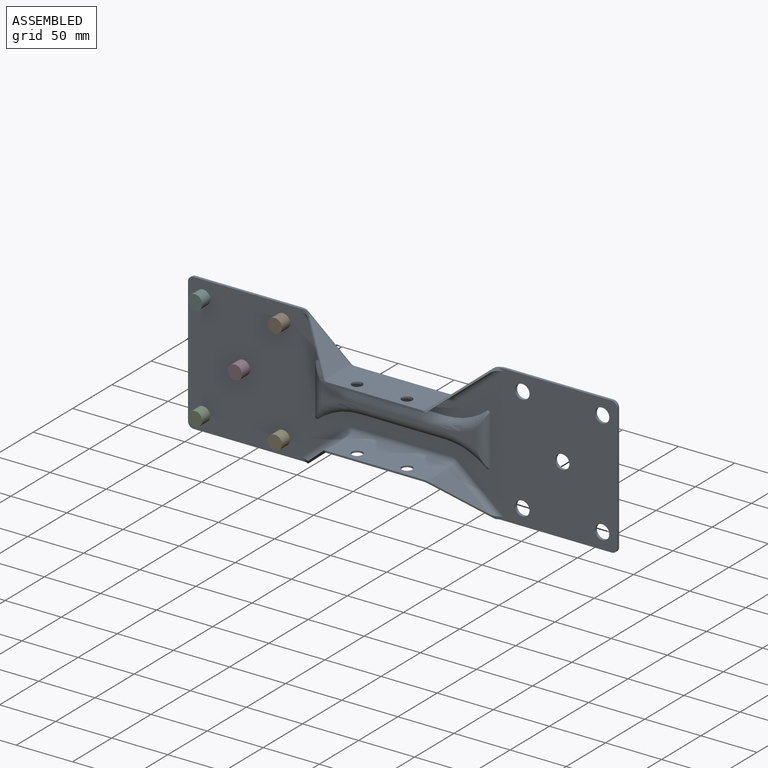
[diagram: assembled view]
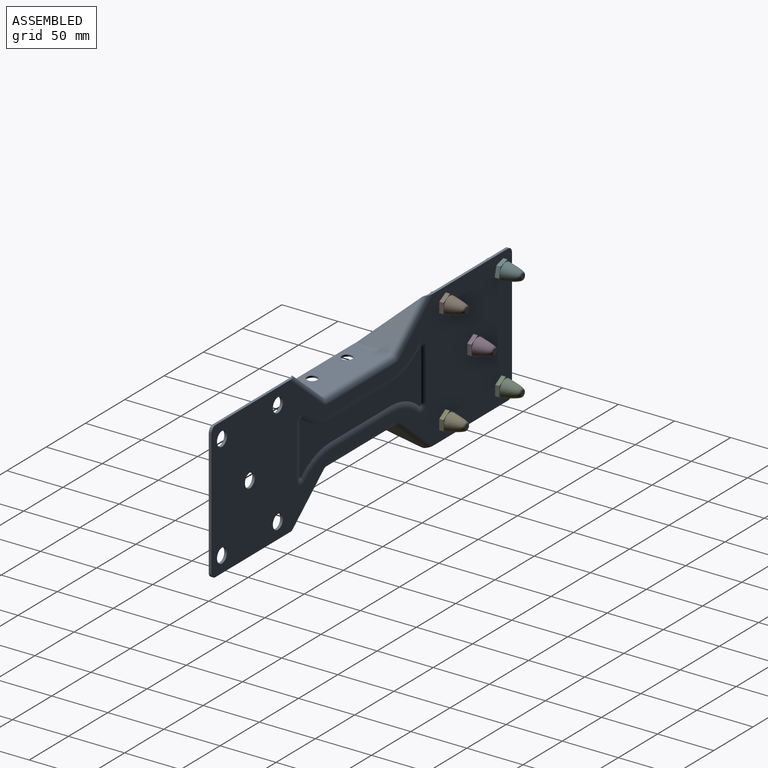
[diagram: assembled view, second angle]
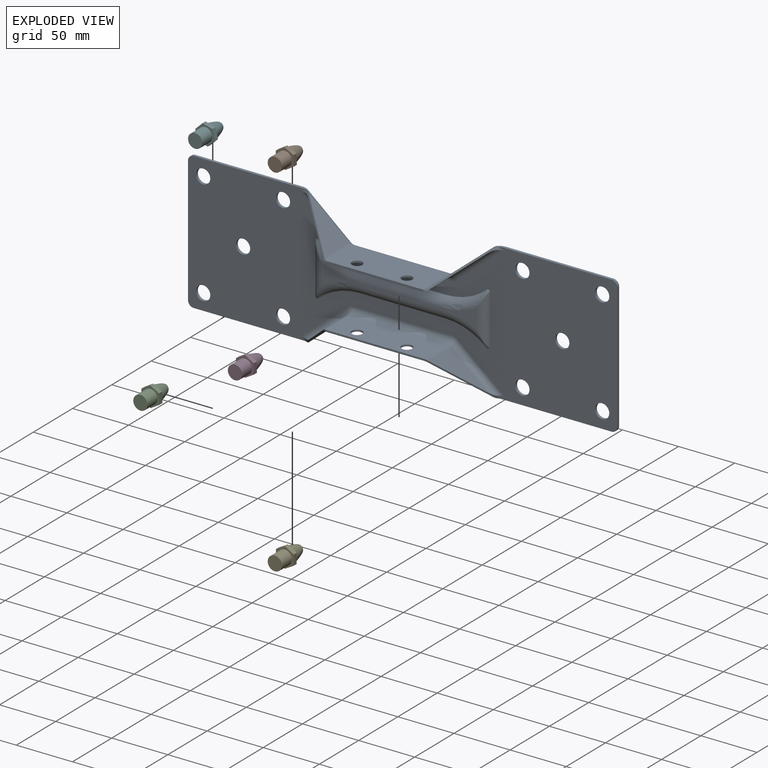
[diagram: exploded view]
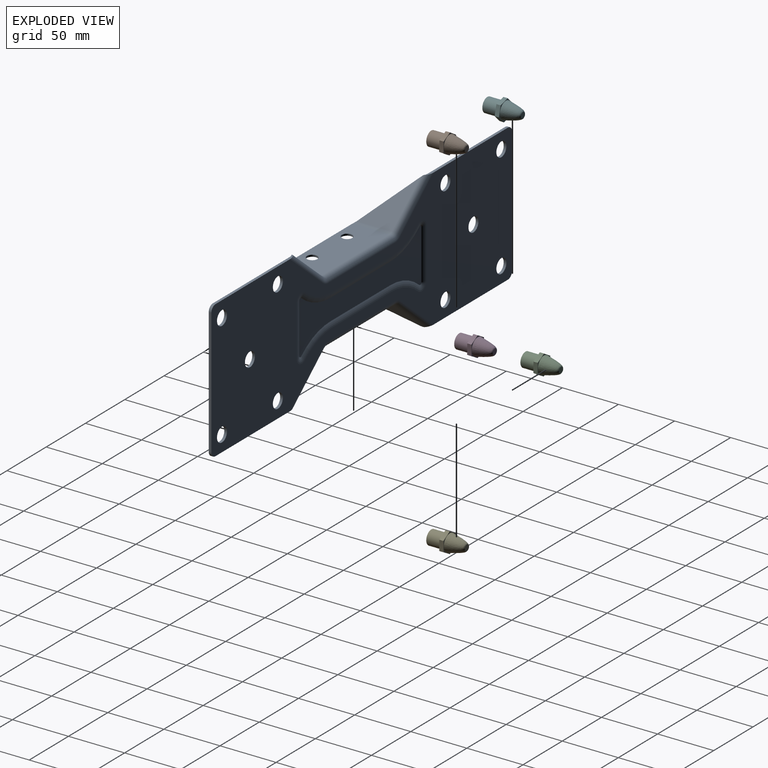
[diagram: exploded view, second angle]
ASSEMBLY  parts=6 mates=5
PART A: 106 faces, bbox 384x131.6x42.4 mm
  f0: plane 382.63x122.46mm, normal (0,0,-1), area 29301.2mm2, adj f2,f6,f11,f12,f14,f15,f40,f41
  f1: plane 382.63x122.46mm, normal (0,0,1), area 30788.4mm2, adj f2,f6,f11,f12,f14,f15,f28,f29
  f2: plane 103.77x4.76mm, normal (0,1,0), area 238.4mm2, adj f0,f1,f25,f52,f81,f95
  f3: plane 35.86x31.39mm, normal (-0.64,0.77,0), area 734.7mm2, adj f25,f52,f53
  f4: plane 85.2x33.02mm, normal (0,1,0), area 2674.1mm2, adj f5,f53,f55,f56,f84,f85,f90,f91
  f5: plane 86.02x1.59mm, normal (0,0,1), area 134.4mm2, adj f4,f16,f84,f85
  f6: plane 103.78x4.77mm, normal (0,-1,0), area 238.4mm2, adj f0,f1,f23,f77,f83,f93
  f7: plane 35.87x31.39mm, normal (0.64,-0.77,0), area 734.9mm2, adj f23,f77,f79
  f8: plane 85.2x33.02mm, normal (0,-1,0), area 2674.1mm2, adj f9,f73,f76,f79,f86,f87,f88,f89
  f9: plane 86.03x1.59mm, normal (0,0,1), area 134.5mm2, adj f8,f19,f86,f87
  f10: plane 35.87x31.39mm, normal (-0.64,-0.77,0), area 734.9mm2, adj f22,f73,f74
  f11: plane 103.78x4.77mm, normal (0,-1,0), area 238.4mm2, adj f0,f1,f22,f74,f80,f92
  f12: plane 112.3x2.38mm, normal (1,0,0), area 267.4mm2, adj f0,f1,f80,f81
  f13: plane 35.86x31.39mm, normal (0.64,0.77,0), area 734.7mm2, adj f24,f56,f58
  f14: plane 103.77x4.76mm, normal (0,1,0), area 238.4mm2, adj f0,f1,f24,f58,f82,f94
  f15: plane 112.3x2.38mm, normal (-1,0,0), area 267.4mm2, adj f0,f1,f82,f83
  f16: plane 86.36x30.63mm, normal (0,-1,0), area 2506.6mm2, adj f5,f66,f69,f70,f84,f85,f90,f91
  f17: plane 33.59x29.39mm, normal (0.64,-0.77,0), area 644.3mm2, adj f25,f66,f67
  f18: plane 33.59x29.39mm, normal (-0.64,-0.77,0), area 644.3mm2, adj f24,f69,f72
  f19: plane 86.37x30.63mm, normal (0,1,0), area 2507mm2, adj f9,f60,f62,f63,f86,f87,f88,f89
  f20: plane 33.59x29.39mm, normal (-0.64,0.77,0), area 644.3mm2, adj f23,f63,f65
  f21: plane 33.59x29.39mm, normal (0.64,0.77,0), area 644.3mm2, adj f22,f59,f60
  f22: plane 42.25x34.85mm, normal (0.43,-0.36,0.83), area 101.9mm2, adj f10,f11,f21,f59,f60,f73,f74,f87
  f23: plane 42.25x34.85mm, normal (-0.43,-0.36,0.83), area 101.9mm2, adj f6,f7,f20,f63,f65,f77,f79,f86
  f24: plane 42.25x34.85mm, normal (-0.43,0.36,0.83), area 101.6mm2, adj f13,f14,f18,f56,f58,f69,f72,f85
  f25: plane 42.25x34.85mm, normal (0.43,0.36,0.83), area 101.6mm2, adj f2,f3,f17,f52,f53,f66,f67,f84
  f26: plane 138.36x17.67mm, normal (0,0,1), area 573.5mm2, adj f29,f30,f32,f33,f34,f35,f37,f38
  f27: plane 155.58x47.63mm, normal (0,0,-1), area 3760.1mm2, adj f40,f41,f42,f43,f44,f45,f46,f47
  f28: bspline ~14.98x8.61mm, area 16.7mm2, adj f1,f29,f30
  f29: cylinder r=10.16mm len=44.45mm, axis (0,1,0), area 318.9mm2, adj f1,f26,f28,f31
  f30: torus R=64.96mm, axis (0,0,-1), area 374.7mm2, adj f1,f26,f28,f32
  f31: bspline ~14.98x8.61mm, area 20.4mm2, adj f1,f29,f33
  f32: cylinder r=10.16mm len=76.2mm, axis (1,0,0), area 782.5mm2, adj f1,f26,f30,f34
  f33: torus R=64.96mm, axis (0,0,-1), area 374.7mm2, adj f1,f26,f31,f35
  f34: torus R=64.96mm, axis (0,0,-1), area 374.7mm2, adj f1,f26,f32,f36
  f35: cylinder r=10.16mm len=76.2mm, axis (1,0,0), area 782.5mm2, adj f1,f26,f33,f37
  f36: bspline ~14.98x8.61mm, area 20.4mm2, adj f1,f34,f38
  f37: torus R=64.96mm, axis (0,0,-1), area 374.7mm2, adj f1,f26,f35,f39
  f38: cylinder r=10.16mm len=44.45mm, axis (0,-1,0), area 318.9mm2, adj f1,f26,f36,f39
  f39: bspline ~14.98x8.61mm, area 16.7mm2, adj f1,f37,f38
  f40: cylinder r=10.16mm len=76.2mm, axis (-1,0,0), area 391.2mm2, adj f0,f27,f41,f42
  f41: torus R=51.44mm, axis (0,0,-1), area 198.8mm2, adj f0,f27,f40,f43
  f42: torus R=51.44mm, axis (0,0,-1), area 198.8mm2, adj f0,f27,f40,f44
  f43: torus R=6.51mm, axis (0,0,1), area 46.9mm2, adj f0,f27,f41,f45
  f44: torus R=6.51mm, axis (0,0,1), area 46.9mm2, adj f0,f27,f42,f46
  f45: cylinder r=10.16mm len=44.45mm, axis (0,1,0), area 228.2mm2, adj f0,f27,f43,f47
  f46: cylinder r=10.16mm len=44.45mm, axis (0,-1,0), area 228.2mm2, adj f0,f27,f44,f48
  f47: torus R=6.51mm, axis (0,0,1), area 46.9mm2, adj f0,f27,f45,f49
  f48: torus R=6.51mm, axis (0,0,1), area 46.9mm2, adj f0,f27,f46,f50
  f49: torus R=51.44mm, axis (0,0,-1), area 198.8mm2, adj f0,f27,f47,f51
  f50: torus R=51.44mm, axis (0,0,-1), area 198.8mm2, adj f0,f27,f48,f51
  f51: cylinder r=10.16mm len=76.2mm, axis (-1,0,0), area 391.2mm2, adj f0,f27,f49,f50
  f52: cylinder r=5.08mm len=45.4mm, axis (-0.77,-0.64,0), area 409.2mm2, adj f0,f2,f3,f25,f54
  f53: cylinder r=5.08mm len=32.96mm, axis (0,0,1), area 114.6mm2, adj f3,f4,f25,f54,f84
  f54: torus R=10.16mm, axis (0,0,1), area 38.6mm2, adj f0,f52,f53,f55
  f55: cylinder r=5.08mm len=85.2mm, axis (-1,0,0), area 679.9mm2, adj f0,f4,f54,f57
  f56: cylinder r=5.08mm len=32.96mm, axis (0,0,-1), area 114.6mm2, adj f4,f13,f24,f57,f85
  f57: torus R=10.16mm, axis (0,0,1), area 38.6mm2, adj f0,f55,f56,f58
  f58: cylinder r=5.08mm len=45.4mm, axis (-0.77,0.64,0), area 409.2mm2, adj f0,f13,f14,f24,f57
  f59: cylinder r=5.08mm len=43.84mm, axis (-0.77,0.64,0), area 388.7mm2, adj f1,f21,f22,f61,f92
  f60: cylinder r=5.08mm len=30.63mm, axis (0,0,1), area 106.8mm2, adj f19,f21,f22,f61,f87
  f61: torus R=10.16mm, axis (0,0,1), area 38.6mm2, adj f1,f59,f60,f62
  f62: cylinder r=5.08mm len=86.37mm, axis (-1,0,0), area 689.2mm2, adj f1,f19,f61,f64
  f63: cylinder r=5.08mm len=30.63mm, axis (0,0,-1), area 106.8mm2, adj f19,f20,f23,f64,f86
  f64: torus R=10.16mm, axis (0,0,1), area 38.6mm2, adj f1,f62,f63,f65
  f65: cylinder r=5.08mm len=43.84mm, axis (-0.77,-0.64,0), area 388.7mm2, adj f1,f20,f23,f64,f93
  f66: cylinder r=5.08mm len=30.63mm, axis (0,0,1), area 106.8mm2, adj f16,f17,f25,f68,f84
  f67: cylinder r=5.08mm len=43.84mm, axis (0.77,0.64,0), area 388.7mm2, adj f1,f17,f25,f68,f95
  f68: torus R=10.16mm, axis (0,0,1), area 38.6mm2, adj f1,f66,f67,f70
  f69: cylinder r=5.08mm len=30.63mm, axis (0,0,-1), area 106.8mm2, adj f16,f18,f24,f71,f85
  f70: cylinder r=5.08mm len=86.36mm, axis (1,0,0), area 689.1mm2, adj f1,f16,f68,f71
  f71: torus R=10.16mm, axis (0,0,1), area 38.6mm2, adj f1,f69,f70,f72
  f72: cylinder r=5.08mm len=43.84mm, axis (0.77,-0.64,0), area 388.7mm2, adj f1,f18,f24,f71,f94
  f73: cylinder r=5.08mm len=32.97mm, axis (0,0,1), area 114.6mm2, adj f8,f10,f22,f75,f87
  f74: cylinder r=5.08mm len=45.4mm, axis (0.77,-0.64,0), area 409.2mm2, adj f0,f10,f11,f22,f75
  f75: torus R=10.16mm, axis (0,0,1), area 38.6mm2, adj f0,f73,f74,f76
  f76: cylinder r=5.08mm len=85.2mm, axis (1,0,0), area 679.9mm2, adj f0,f8,f75,f78
  f77: cylinder r=5.08mm len=45.4mm, axis (0.77,0.64,0), area 409.2mm2, adj f0,f6,f7,f23,f78
  f78: torus R=10.16mm, axis (0,0,1), area 38.6mm2, adj f0,f76,f77,f79
  f79: cylinder r=5.08mm len=32.97mm, axis (0,0,-1), area 114.6mm2, adj f7,f8,f23,f78,f86
  f80: cylinder r=5.08mm len=5.08mm, axis (0,0,-1), area 19mm2, adj f0,f1,f11,f12
  f81: cylinder r=5.08mm len=5.08mm, axis (0,0,-1), area 19mm2, adj f0,f1,f2,f12
  f82: cylinder r=5.08mm len=5.08mm, axis (0,0,-1), area 19mm2, adj f0,f1,f14,f15
  f83: cylinder r=5.08mm len=5.08mm, axis (0,0,-1), area 19mm2, adj f0,f1,f6,f15
  f84: cylinder r=5.08mm len=4.38mm, axis (0.64,-0.77,0), area 5.6mm2, adj f4,f5,f16,f25,f53,f66
  f85: cylinder r=5.08mm len=4.38mm, axis (0.64,0.77,0), area 5.6mm2, adj f4,f5,f16,f24,f56,f69
  f86: cylinder r=5.08mm len=4.38mm, axis (-0.64,0.77,0), area 5.6mm2, adj f8,f9,f19,f23,f63,f79
  f87: cylinder r=5.08mm len=4.38mm, axis (-0.64,-0.77,0), area 5.6mm2, adj f8,f9,f19,f22,f60,f73
  f88: cylinder r=4.7mm len=9.4mm, axis (0,1,0), area 46.9mm2, adj f8,f19
  f89: cylinder r=4.7mm len=9.4mm, axis (0,1,0), area 46.9mm2, adj f8,f19
  f90: cylinder r=4.7mm len=9.4mm, axis (0,1,0), area 46.9mm2, adj f4,f16
  f91: cylinder r=4.7mm len=9.4mm, axis (0,1,0), area 46.9mm2, adj f4,f16
  f92: cylinder r=5.08mm len=6.54mm, axis (-0.64,-0.77,0), area 10.7mm2, adj f1,f11,f22,f59
  f93: cylinder r=5.08mm len=6.54mm, axis (0.64,-0.77,0), area 10.7mm2, adj f1,f6,f23,f65
  f94: cylinder r=5.08mm len=6.54mm, axis (0.64,0.77,0), area 10.7mm2, adj f1,f14,f24,f72
  f95: cylinder r=5.08mm len=6.54mm, axis (-0.64,0.77,0), area 10.7mm2, adj f1,f2,f25,f67
  f96: cylinder r=6.35mm len=12.7mm, axis (0,0,-1), area 95mm2, adj f0,f1
  f97: cylinder r=6.35mm len=12.7mm, axis (0,0,-1), area 95mm2, adj f0,f1
  f98: cylinder r=6.35mm len=12.7mm, axis (0,0,-1), area 95mm2, adj f0,f1
  f99: cylinder r=6.35mm len=12.7mm, axis (0,0,-1), area 95mm2, adj f0,f1
  f100: cylinder r=6.35mm len=12.7mm, axis (0,0,-1), area 95mm2, adj f0,f1
  f101: cylinder r=6.35mm len=12.7mm, axis (0,0,-1), area 95mm2, adj f0,f1
  f102: cylinder r=6.35mm len=12.7mm, axis (0,0,-1), area 95mm2, adj f0,f1
  f103: cylinder r=6.35mm len=12.7mm, axis (0,0,-1), area 95mm2, adj f0,f1
  f104: cylinder r=6.35mm len=12.7mm, axis (0,0,-1), area 95mm2, adj f0,f1
  f105: cylinder r=6.35mm len=12.7mm, axis (0,0,-1), area 95mm2, adj f0,f1
PART B: 12 faces, bbox 15.9x18.3x31.8 mm
  f0: cylinder r=6.35mm len=12.7mm, axis (0,0,-1), area 506.7mm2, adj f1,f9
  f1: plane 12.7x12.7mm, normal (0,0,1), area 126.7mm2, adj f0
  f2: plane 7.94x4.58mm, normal (0.5,-0.87,0), area 34.9mm2, adj f3,f7,f8,f9
  f3: plane 9.17x3.81mm, normal (1,0,0), area 34.9mm2, adj f2,f4,f8,f9
  f4: plane 7.94x4.58mm, normal (0.5,0.87,0), area 34.9mm2, adj f3,f5,f8,f9
  f5: plane 7.94x4.58mm, normal (-0.5,0.87,0), area 34.9mm2, adj f4,f6,f8,f9
  f6: plane 9.17x3.81mm, normal (-1,0,0), area 34.9mm2, adj f5,f7,f8,f9
  f7: plane 7.94x4.58mm, normal (-0.5,-0.87,0), area 34.9mm2, adj f2,f6,f8,f9
  f8: plane 18.33x15.88mm, normal (0,0,-1), area 35.8mm2, adj f2,f3,f4,f5,f6,f7,f11
  f9: plane 18.33x15.88mm, normal (0,0,1), area 91.6mm2, adj f0,f2,f3,f4,f5,f6,f7
  f10: plane 5.08x5.08mm, normal (0,0,-1), area 20.3mm2, adj f11
  f11: bspline ~15.24x15.24mm, area 575.9mm2, adj f8,f10
PART C: same geometry as B
PART D: same geometry as B
PART E: same geometry as B
PART F: same geometry as B
PLACE A rot(axis=(0,-0.71,0.71),180deg) t=(0,1.27,0)mm
PLACE B rot(axis=(0.01,0.71,-0.71),178.7deg) t=(-106.68,1.27,46.99)mm
PLACE C rot(axis=(0.01,0.71,-0.71),179.2deg) t=(-177.8,1.27,-46.99)mm
PLACE D rot(axis=(1,0,0),90deg) t=(-142.24,1.27,0)mm
PLACE E rot(axis=(0,-0.71,0.71),179.5deg) t=(-106.68,1.27,-46.99)mm
PLACE F rot(axis=(0.86,0.36,-0.36),98.6deg) t=(-177.8,1.43,46.99)mm
MATE cylindrical E.f0 <-> A.f105  axis (0,-1,0) through (-106.68,-11.43,-46.99)mm
MATE cylindrical D.f0 <-> A.f104  axis (0,-1,0) through (-142.24,-11.43,0)mm
MATE cylindrical C.f0 <-> A.f96  axis (0,-1,0) through (-177.8,-11.43,-46.99)mm
MATE cylindrical F.f0 <-> A.f102  axis (0,-1,0) through (-177.8,-11.27,46.99)mm
MATE cylindrical B.f0 <-> A.f103  axis (0,-1,0) through (-106.68,-11.43,46.99)mm
